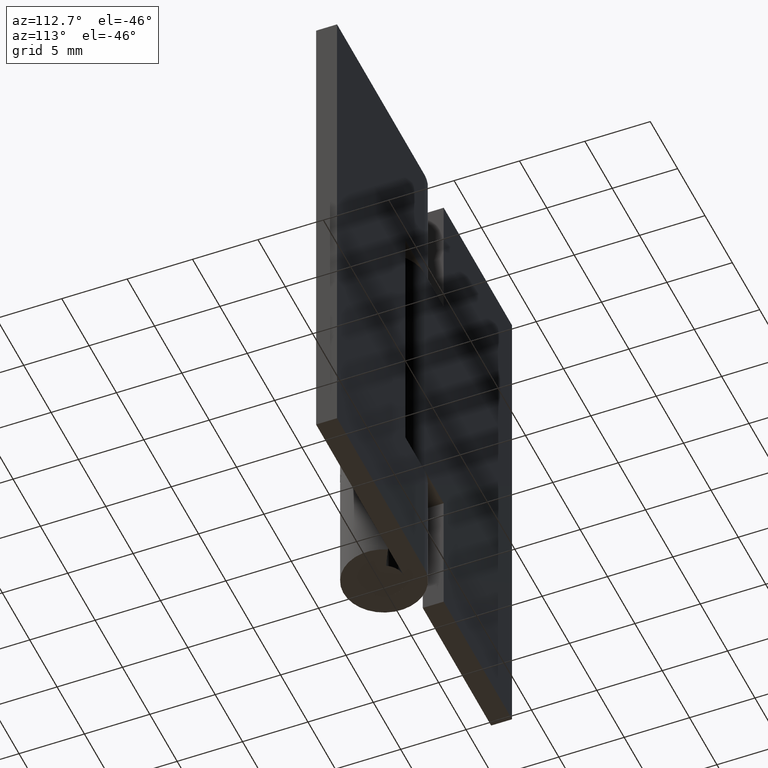
[diagram: clean part render]
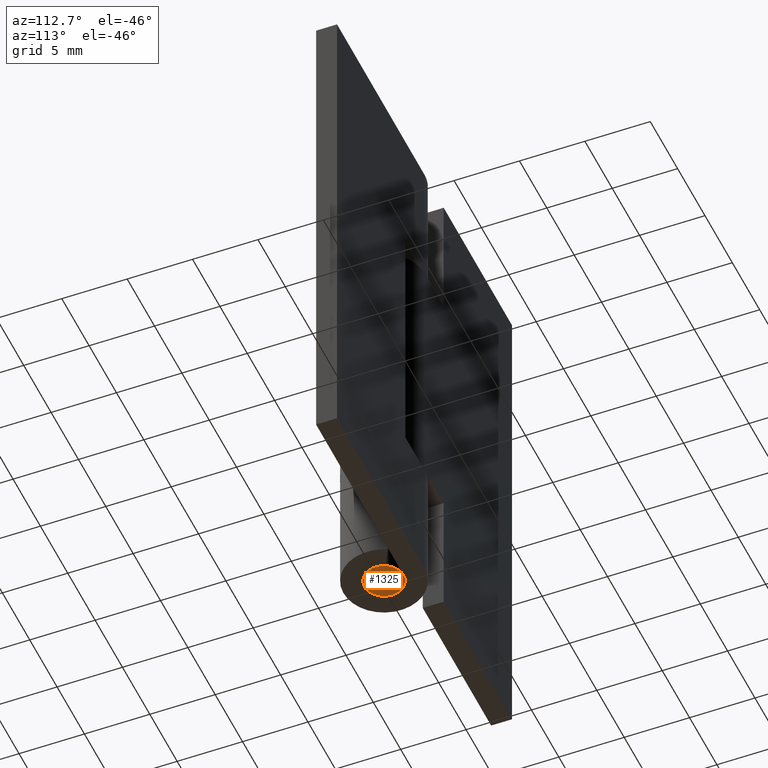
[diagram: same view with one face highlighted and labeled with its STEP entity id]
A machine part, auxiliary view. The second image highlights one B-rep face of the part: STEP entity #1325.
In plain terms, the highlighted face is a freeform B-spline surface patch.
Its self-contained STEP definition (entity closure, byte-faithful):
#1155=CARTESIAN_POINT('',(0.117688734789162,-1.495375993422296,-1.443290E-015));
#1156=VERTEX_POINT('',#1155);
#1162=CARTESIAN_POINT('',(1.500000000000000,0.0,0.0));
#1163=VERTEX_POINT('',#1162);
#1164=CARTESIAN_POINT('',(1.500000000000000,0.0,0.0));
#1165=CARTESIAN_POINT('',(1.500000000000001,-1.386585567838986,0.0));
#1166=CARTESIAN_POINT('',(0.117688734789162,-1.495375993422296,-1.443290E-015));
#1174=(BOUNDED_CURVE()B_SPLINE_CURVE(2,(#1164,#1165,#1166),.UNSPECIFIED.,.F.,.U.)B_SPLINE_CURVE_WITH_KNOTS((3,3),(0.0,0.236331279723689),.UNSPECIFIED.)CURVE()GEOMETRIC_REPRESENTATION_ITEM()RATIONAL_B_SPLINE_CURVE((1.0,0.723120683101705,0.969723312536170))REPRESENTATION_ITEM(''));
#1175=EDGE_CURVE('',#1163,#1156,#1174,.T.);
#1177=CARTESIAN_POINT('',(-0.117688734789162,1.495375993422296,-1.443290E-015));
#1178=VERTEX_POINT('',#1177);
#1179=CARTESIAN_POINT('',(-0.117688734789162,1.495375993422296,-1.443290E-015));
#1180=CARTESIAN_POINT('',(-0.058935252132118,1.500000000000000,0.0));
#1181=CARTESIAN_POINT('',(0.0,1.500000000000000,0.0));
#1182=CARTESIAN_POINT('',(1.500000000000000,1.500000000000000,0.0));
#1183=CARTESIAN_POINT('',(1.500000000000000,0.0,0.0));
#1191=(BOUNDED_CURVE()B_SPLINE_CURVE(2,(#1179,#1180,#1181,#1182,#1183),.UNSPECIFIED.,.F.,.U.)B_SPLINE_CURVE_WITH_KNOTS((3,2,3),(0.736331279723689,0.750000000000000,1.0),.UNSPECIFIED.)CURVE()GEOMETRIC_REPRESENTATION_ITEM()RATIONAL_B_SPLINE_CURVE((0.969723312536170,0.983986098084843,1.0,0.707106781186548,1.0))REPRESENTATION_ITEM(''));
#1192=EDGE_CURVE('',#1178,#1163,#1191,.T.);
#1268=CARTESIAN_POINT('',(-1.500000000000000,0.0,0.0));
#1269=VERTEX_POINT('',#1268);
#1270=CARTESIAN_POINT('',(-1.500000000000000,0.0,0.0));
#1271=CARTESIAN_POINT('',(-1.500000000000000,1.386585567838987,0.0));
#1272=CARTESIAN_POINT('',(-0.117688734789162,1.495375993422295,-1.443290E-015));
#1280=(BOUNDED_CURVE()B_SPLINE_CURVE(2,(#1270,#1271,#1272),.UNSPECIFIED.,.F.,.U.)B_SPLINE_CURVE_WITH_KNOTS((3,3),(0.500000000000000,0.736331279723689),.UNSPECIFIED.)CURVE()GEOMETRIC_REPRESENTATION_ITEM()RATIONAL_B_SPLINE_CURVE((1.0,0.723120683101705,0.969723312536170))REPRESENTATION_ITEM(''));
#1281=EDGE_CURVE('',#1269,#1178,#1280,.T.);
#1283=CARTESIAN_POINT('',(0.117688734789162,-1.495375993422296,-1.443290E-015));
#1284=CARTESIAN_POINT('',(0.058935252132118,-1.500000000000000,0.0));
#1285=CARTESIAN_POINT('',(0.0,-1.500000000000000,0.0));
#1286=CARTESIAN_POINT('',(-1.500000000000000,-1.500000000000000,0.0));
#1287=CARTESIAN_POINT('',(-1.500000000000000,0.0,0.0));
#1295=(BOUNDED_CURVE()B_SPLINE_CURVE(2,(#1283,#1284,#1285,#1286,#1287),.UNSPECIFIED.,.F.,.U.)B_SPLINE_CURVE_WITH_KNOTS((3,2,3),(0.236331279723689,0.250000000000000,0.500000000000000),.UNSPECIFIED.)CURVE()GEOMETRIC_REPRESENTATION_ITEM()RATIONAL_B_SPLINE_CURVE((0.969723312536170,0.983986098084843,1.0,0.707106781186548,1.0))REPRESENTATION_ITEM(''));
#1296=EDGE_CURVE('',#1156,#1269,#1295,.T.);
#1314=CARTESIAN_POINT('',(-1.649849994185418,-1.649392129090134,0.0));
#1315=CARTESIAN_POINT('',(1.649850074651688,-1.649392129090134,0.0));
#1316=CARTESIAN_POINT('',(-1.649849994185418,1.649392209556404,0.0));
#1317=CARTESIAN_POINT('',(1.649850074651688,1.649392209556404,0.0));
#1318=B_SPLINE_SURFACE_WITH_KNOTS('',1,1,((#1314,#1316),(#1315,#1317)),.UNSPECIFIED.,.F.,.F.,.U.,(2,2),(2,2),(0.0,3.299700068837106),(0.0,3.298784338646539),.UNSPECIFIED.);
#1319=ORIENTED_EDGE('',*,*,#1175,.T.);
#1320=ORIENTED_EDGE('',*,*,#1296,.T.);
#1321=ORIENTED_EDGE('',*,*,#1281,.T.);
#1322=ORIENTED_EDGE('',*,*,#1192,.T.);
#1323=EDGE_LOOP('',(#1319,#1320,#1321,#1322));
#1324=FACE_OUTER_BOUND('',#1323,.T.);
#1325=ADVANCED_FACE('',(#1324),#1318,.F.);